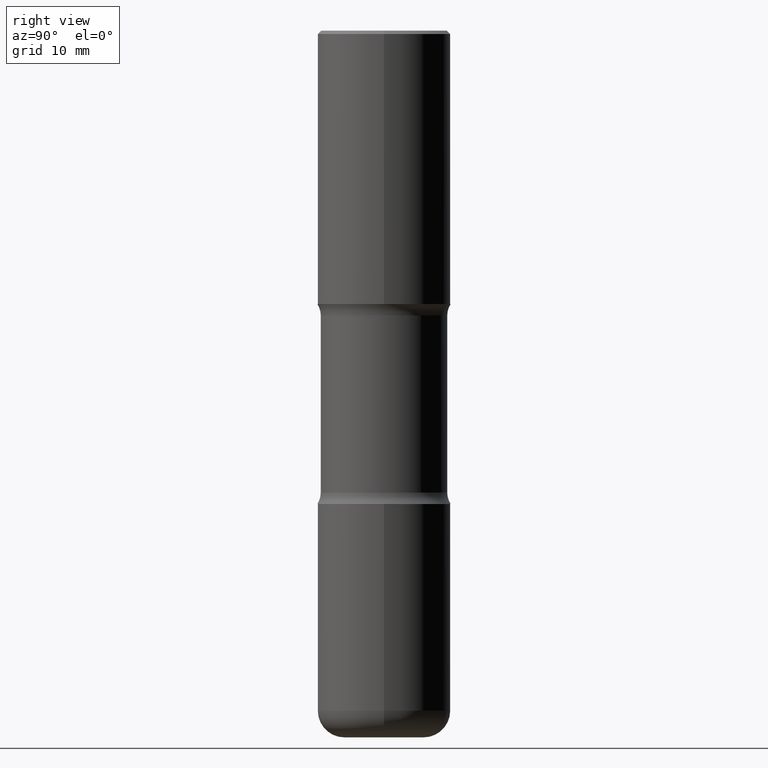
[diagram: clean part render]
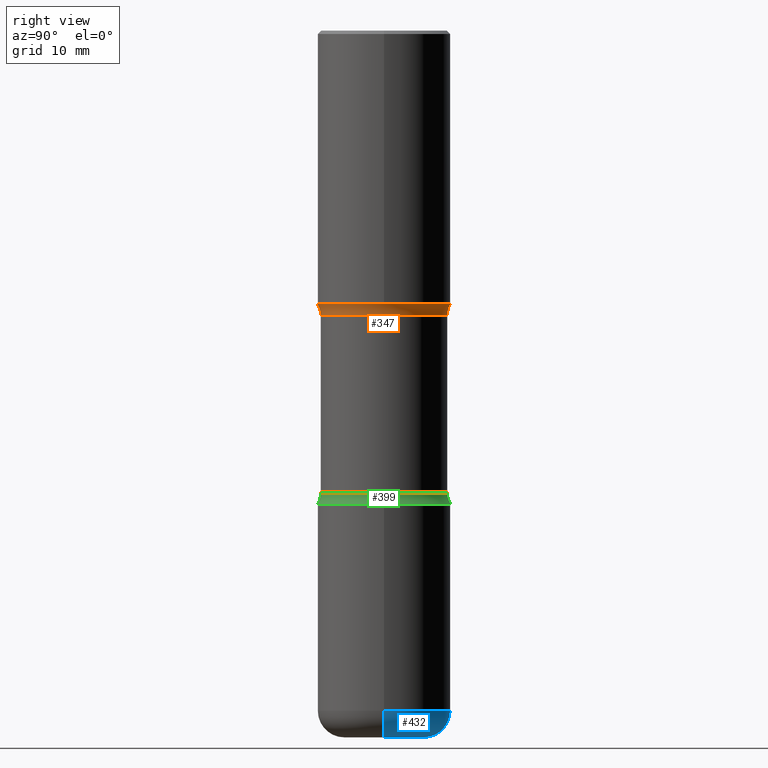
[diagram: same view with three faces highlighted in distinct colors, each labeled with its STEP entity id]
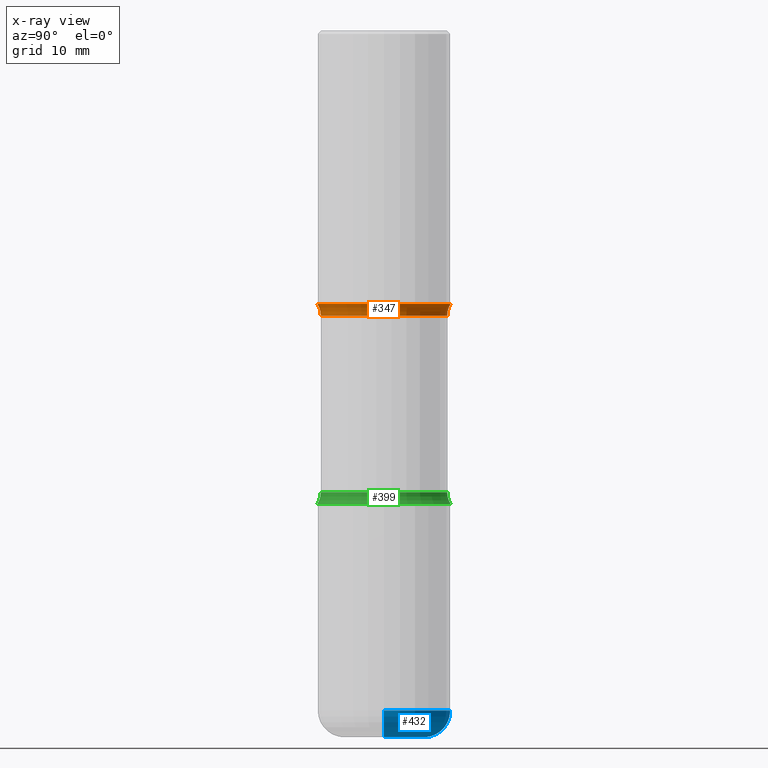
[diagram: x-ray of the same camera — body ghosted, the three highlighted faces saturated]
A machine part, right view with three faces highlighted in distinct colors.
The next image is the same camera in x-ray (body ghosted, the three faces saturated) — at least one of them is partly hidden behind the body in this view.
Their STEP definitions:

[orange] entity #347 — the highlighted toroidal blend (fillet) surface has major radius 12.6619 mm and minor (blend) radius 3.175 mm.
#34 = AXIS2_PLACEMENT_3D ( 'NONE', #203, #159, #165 ) ;
#60 = AXIS2_PLACEMENT_3D ( 'NONE', #287, #163, #114 ) ;
#65 = EDGE_CURVE ( 'NONE', #500, #536, #186, .T. ) ;
#69 = ORIENTED_EDGE ( 'NONE', *, *, #547, .F. ) ;
#77 = DIRECTION ( 'NONE',  ( 6.982962677686265922E-15, 1.000000000000000000, -3.657092360996335267E-15 ) ) ;
#82 = CARTESIAN_POINT ( 'NONE',  ( -2.631687031945121663E-15, -0.3735000000000060494, -1.682231930840098144 ) ) ;
#94 = DIRECTION ( 'NONE',  ( -1.000000000000000000, 6.982962677686265922E-15, -4.883557194083112340E-29 ) ) ;
#114 = DIRECTION ( 'NONE',  ( 6.860497997771532351E-15, 1.000000000000000000, 0.000000000000000000 ) ) ;
#122 = CIRCLE ( 'NONE', #423, 0.1250000000000001665 ) ;
#137 = ORIENTED_EDGE ( 'NONE', *, *, #65, .T. ) ;
#152 = EDGE_LOOP ( 'NONE', ( #450, #69, #242, #137 ) ) ;
#159 = DIRECTION ( 'NONE',  ( 2.497382066111305685E-29, -3.417138595909611452E-15, -1.000000000000000000 ) ) ;
#163 = DIRECTION ( 'NONE',  ( 1.000000000000000000, -6.860497997771530774E-15, 4.841709315645876741E-29 ) ) ;
#165 = DIRECTION ( 'NONE',  ( 6.982962677686265922E-15, 1.000000000000000000, -3.469453890861391629E-15 ) ) ;
#171 = CIRCLE ( 'NONE', #348, 0.3735000000000001097 ) ;
#186 = CIRCLE ( 'NONE', #34, 0.3937000000000004940 ) ;
#188 = CIRCLE ( 'NONE', #60, 0.1250000000000001665 ) ;
#203 = CARTESIAN_POINT ( 'NONE',  ( 3.885916448764630888E-29, -5.723406242705518712E-15, -1.614100000000000090 ) ) ;
#228 = DIRECTION ( 'NONE',  ( 6.982962677686265922E-15, 1.000000000000000000, -3.417138595909611452E-15 ) ) ;
#235 = DIRECTION ( 'NONE',  ( -6.982962677686265133E-15, -1.000000000000000000, 0.000000000000000000 ) ) ;
#242 = ORIENTED_EDGE ( 'NONE', *, *, #464, .T. ) ;
#252 = CARTESIAN_POINT ( 'NONE',  ( 4.056067910974230799E-29, -5.956222493193065901E-15, -1.682231930840099476 ) ) ;
#274 = CARTESIAN_POINT ( 'NONE',  ( 4.018463748733707681E-29, -6.010073793817493129E-15, -1.682231930840099476 ) ) ;
#287 = CARTESIAN_POINT ( 'NONE',  ( -3.419958251889069808E-15, -0.4985000000000063269, -1.682231930840097922 ) ) ;
#298 = AXIS2_PLACEMENT_3D ( 'NONE', #274, #431, #228 ) ;
#312 = FACE_OUTER_BOUND ( 'NONE', #152, .T. ) ;
#347 = ADVANCED_FACE ( 'NONE', ( #312 ), #518, .F. ) ;
#348 = AXIS2_PLACEMENT_3D ( 'NONE', #252, #418, #77 ) ;
#377 = VERTEX_POINT ( 'NONE', #491 ) ;
#384 = EDGE_CURVE ( 'NONE', #480, #536, #188, .T. ) ;
#388 = CARTESIAN_POINT ( 'NONE',  ( -2.700978061722616937E-15, -0.3937000000000062117, -1.614099999999998758 ) ) ;
#418 = DIRECTION ( 'NONE',  ( 2.497382066111305685E-29, -3.417138595909611452E-15, -1.000000000000000000 ) ) ;
#423 = AXIS2_PLACEMENT_3D ( 'NONE', #479, #94, #235 ) ;
#431 = DIRECTION ( 'NONE',  ( 2.497382066111305685E-29, -3.417138595909611452E-15, -1.000000000000000000 ) ) ;
#450 = ORIENTED_EDGE ( 'NONE', *, *, #384, .F. ) ;
#464 = EDGE_CURVE ( 'NONE', #377, #500, #122, .T. ) ;
#479 = CARTESIAN_POINT ( 'NONE',  ( 3.481006894826646143E-15, 0.4984999999999942810, -1.682231930840101253 ) ) ;
#480 = VERTEX_POINT ( 'NONE', #82 ) ;
#491 = CARTESIAN_POINT ( 'NONE',  ( 2.608136560115861621E-15, 0.3734999999999941700, -1.682231930840100809 ) ) ;
#500 = VERTEX_POINT ( 'NONE', #553 ) ;
#518 = TOROIDAL_SURFACE ( 'NONE', #298, 0.4985000000000002762, 0.1250000000000001665 ) ;
#536 = VERTEX_POINT ( 'NONE', #388 ) ;
#547 = EDGE_CURVE ( 'NONE', #377, #480, #171, .T. ) ;
#553 = CARTESIAN_POINT ( 'NONE',  ( 2.749192406205125815E-15, 0.3936999999999947764, -1.614100000000001423 ) ) ;

[blue] entity #432 — the highlighted toroidal blend (fillet) surface has major radius 5.9995 mm and minor (blend) radius 4.0005 mm.
#7 = DIRECTION ( 'NONE',  ( -1.000000000000000000, 7.105427357601006592E-15, 0.000000000000000000 ) ) ;
#14 = AXIS2_PLACEMENT_3D ( 'NONE', #169, #542, #107 ) ;
#21 = VERTEX_POINT ( 'NONE', #527 ) ;
#26 = DIRECTION ( 'NONE',  ( 1.000000000000000000, -6.982962677686262766E-15, 0.000000000000000000 ) ) ;
#107 = DIRECTION ( 'NONE',  ( 1.000000000000000000, -6.982962677686269077E-15, 0.000000000000000000 ) ) ;
#111 = EDGE_CURVE ( 'NONE', #360, #355, #376, .T. ) ;
#121 = AXIS2_PLACEMENT_3D ( 'NONE', #230, #180, #7 ) ;
#132 = CARTESIAN_POINT ( 'NONE',  ( 9.820269084997649591E-29, -1.402074161239241518E-14, -4.015699999999998937 ) ) ;
#150 = CARTESIAN_POINT ( 'NONE',  ( 0.3937000000000007716, -1.676993401859750313E-14, -4.015699999999998937 ) ) ;
#155 = CARTESIAN_POINT ( 'NONE',  ( 1.020543042197181255E-28, -1.457064992326021168E-14, -4.173199999999999577 ) ) ;
#169 = CARTESIAN_POINT ( 'NONE',  ( 9.820269084997649591E-29, -1.402074161239241518E-14, -4.015699999999998937 ) ) ;
#173 = EDGE_CURVE ( 'NONE', #21, #360, #486, .T. ) ;
#177 = CIRCLE ( 'NONE', #487, 0.2362000000000006039 ) ;
#179 = EDGE_CURVE ( 'NONE', #484, #355, #276, .T. ) ;
#180 = DIRECTION ( 'NONE',  ( 7.105427357601001859E-15, 1.000000000000000000, -3.491481338843145583E-15 ) ) ;
#193 = ORIENTED_EDGE ( 'NONE', *, *, #111, .F. ) ;
#199 = TOROIDAL_SURFACE ( 'NONE', #378, 0.2362000000000005762, 0.1575000000000003619 ) ;
#205 = CARTESIAN_POINT ( 'NONE',  ( -0.3937000000000007716, -1.122333486170489645E-14, -4.015699999999998937 ) ) ;
#230 = CARTESIAN_POINT ( 'NONE',  ( -0.2362000000000005762, -1.234243967052705563E-14, -4.015699999999998937 ) ) ;
#259 = AXIS2_PLACEMENT_3D ( 'NONE', #467, #321, #323 ) ;
#276 = CIRCLE ( 'NONE', #121, 0.1575000000000003342 ) ;
#283 = ORIENTED_EDGE ( 'NONE', *, *, #179, .T. ) ;
#292 = ORIENTED_EDGE ( 'NONE', *, *, #515, .T. ) ;
#294 = FACE_OUTER_BOUND ( 'NONE', #345, .T. ) ;
#321 = DIRECTION ( 'NONE',  ( -6.982962677686266711E-15, -1.000000000000000000, 3.491481338843145583E-15 ) ) ;
#323 = DIRECTION ( 'NONE',  ( 1.000000000000000000, -6.982962677686271444E-15, 0.000000000000000000 ) ) ;
#345 = EDGE_LOOP ( 'NONE', ( #292, #283, #193, #472 ) ) ;
#355 = VERTEX_POINT ( 'NONE', #205 ) ;
#360 = VERTEX_POINT ( 'NONE', #150 ) ;
#366 = DIRECTION ( 'NONE',  ( 1.000000000000000000, -6.982962677686266711E-15, 4.883557194083112340E-29 ) ) ;
#376 = CIRCLE ( 'NONE', #14, 0.3937000000000005495 ) ;
#378 = AXIS2_PLACEMENT_3D ( 'NONE', #132, #405, #366 ) ;
#405 = DIRECTION ( 'NONE',  ( -2.445468806185136597E-29, 3.491481338843145583E-15, 1.000000000000000000 ) ) ;
#422 = DIRECTION ( 'NONE',  ( -2.445468806185136597E-29, 3.491481338843145583E-15, 1.000000000000000000 ) ) ;
#432 = ADVANCED_FACE ( 'NONE', ( #294 ), #199, .T. ) ;
#467 = CARTESIAN_POINT ( 'NONE',  ( 0.2362000000000005762, -1.567011739686191643E-14, -4.015699999999998937 ) ) ;
#469 = CARTESIAN_POINT ( 'NONE',  ( -0.2362000000000006039, -1.205784142154987508E-14, -4.173199999999999577 ) ) ;
#472 = ORIENTED_EDGE ( 'NONE', *, *, #173, .F. ) ;
#484 = VERTEX_POINT ( 'NONE', #469 ) ;
#486 = CIRCLE ( 'NONE', #259, 0.1575000000000003342 ) ;
#487 = AXIS2_PLACEMENT_3D ( 'NONE', #155, #422, #26 ) ;
#515 = EDGE_CURVE ( 'NONE', #21, #484, #177, .T. ) ;
#527 = CARTESIAN_POINT ( 'NONE',  ( 0.2362000000000006039, -1.622002570772971136E-14, -4.173199999999999577 ) ) ;
#542 = DIRECTION ( 'NONE',  ( -2.445468806185136597E-29, 3.491481338843145583E-15, 1.000000000000000000 ) ) ;

[green] entity #399 — the highlighted toroidal blend (fillet) surface has major radius 12.6619 mm and minor (blend) radius 3.175 mm.
#20 = DIRECTION ( 'NONE',  ( 6.982962677686265922E-15, 1.000000000000000000, -2.775563112689115117E-15 ) ) ;
#23 = FACE_OUTER_BOUND ( 'NONE', #343, .T. ) ;
#25 = ORIENTED_EDGE ( 'NONE', *, *, #270, .F. ) ;
#35 = AXIS2_PLACEMENT_3D ( 'NONE', #195, #383, #301 ) ;
#46 = EDGE_CURVE ( 'NONE', #201, #237, #526, .T. ) ;
#47 = DIRECTION ( 'NONE',  ( -1.000000000000000000, 6.982962677686265922E-15, -4.883557194083112340E-29 ) ) ;
#51 = CARTESIAN_POINT ( 'NONE',  ( 2.608136560115886471E-15, 0.3734999999999905063, -2.727068069159902741 ) ) ;
#55 = CARTESIAN_POINT ( 'NONE',  ( 6.835574407048695164E-29, -9.759388638334361670E-15, -2.795200000000000351 ) ) ;
#64 = CARTESIAN_POINT ( 'NONE',  ( 6.665422944839096374E-29, -9.526572387846816848E-15, -2.727068069159901409 ) ) ;
#106 = VERTEX_POINT ( 'NONE', #387 ) ;
#110 = AXIS2_PLACEMENT_3D ( 'NONE', #64, #413, #475 ) ;
#125 = AXIS2_PLACEMENT_3D ( 'NONE', #400, #406, #317 ) ;
#160 = CIRCLE ( 'NONE', #220, 0.1249999999999999584 ) ;
#195 = CARTESIAN_POINT ( 'NONE',  ( 6.621268914021895076E-29, -9.589803473068410880E-15, -2.727068069159901409 ) ) ;
#201 = VERTEX_POINT ( 'NONE', #51 ) ;
#209 = EDGE_CURVE ( 'NONE', #453, #201, #160, .T. ) ;
#220 = AXIS2_PLACEMENT_3D ( 'NONE', #474, #47, #359 ) ;
#224 = DIRECTION ( 'NONE',  ( 2.497382066111305685E-29, -3.417138595909611452E-15, -1.000000000000000000 ) ) ;
#237 = VERTEX_POINT ( 'NONE', #440 ) ;
#240 = CIRCLE ( 'NONE', #125, 0.1249999999999999584 ) ;
#249 = EDGE_CURVE ( 'NONE', #453, #106, #435, .T. ) ;
#262 = ORIENTED_EDGE ( 'NONE', *, *, #209, .T. ) ;
#270 = EDGE_CURVE ( 'NONE', #106, #237, #240, .T. ) ;
#291 = ORIENTED_EDGE ( 'NONE', *, *, #46, .T. ) ;
#301 = DIRECTION ( 'NONE',  ( 6.982962677686265922E-15, 1.000000000000000000, -3.417138595909611452E-15 ) ) ;
#317 = DIRECTION ( 'NONE',  ( 6.860497997771532351E-15, 1.000000000000000000, 0.000000000000000000 ) ) ;
#343 = EDGE_LOOP ( 'NONE', ( #25, #445, #262, #291 ) ) ;
#359 = DIRECTION ( 'NONE',  ( -6.982962677686265133E-15, -1.000000000000000000, 0.000000000000000000 ) ) ;
#383 = DIRECTION ( 'NONE',  ( 2.497382066111305685E-29, -3.417138595909611452E-15, -1.000000000000000000 ) ) ;
#387 = CARTESIAN_POINT ( 'NONE',  ( -2.700978061722584594E-15, -0.3937000000000099309, -2.795199999999999019 ) ) ;
#398 = TOROIDAL_SURFACE ( 'NONE', #35, 0.4985000000000001097, 0.1249999999999999861 ) ;
#399 = ADVANCED_FACE ( 'NONE', ( #23 ), #398, .F. ) ;
#400 = CARTESIAN_POINT ( 'NONE',  ( -3.419958251889042592E-15, -0.4985000000000096576, -2.727068069159899633 ) ) ;
#406 = DIRECTION ( 'NONE',  ( 1.000000000000000000, -6.860497997771530774E-15, 4.841709315645876741E-29 ) ) ;
#409 = AXIS2_PLACEMENT_3D ( 'NONE', #55, #224, #20 ) ;
#413 = DIRECTION ( 'NONE',  ( 2.497382066111305685E-29, -3.417138595909611452E-15, -1.000000000000000000 ) ) ;
#435 = CIRCLE ( 'NONE', #409, 0.3937000000000002164 ) ;
#440 = CARTESIAN_POINT ( 'NONE',  ( -2.631687031945092476E-15, -0.3735000000000094911, -2.727068069159900521 ) ) ;
#445 = ORIENTED_EDGE ( 'NONE', *, *, #249, .F. ) ;
#453 = VERTEX_POINT ( 'NONE', #524 ) ;
#474 = CARTESIAN_POINT ( 'NONE',  ( 3.481006894826670204E-15, 0.4984999999999905063, -2.727068069159903185 ) ) ;
#475 = DIRECTION ( 'NONE',  ( 6.982962677686265922E-15, 1.000000000000000000, -2.925673888797068924E-15 ) ) ;
#524 = CARTESIAN_POINT ( 'NONE',  ( 2.749192406205152242E-15, 0.3936999999999903910, -2.795200000000001239 ) ) ;
#526 = CIRCLE ( 'NONE', #110, 0.3734999999999999987 ) ;